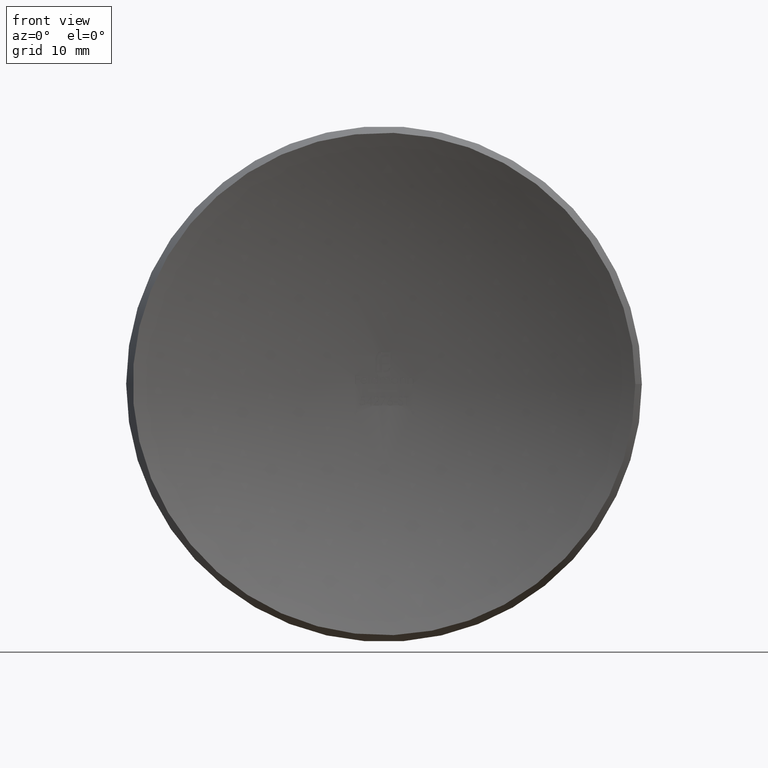
[diagram: clean part render]
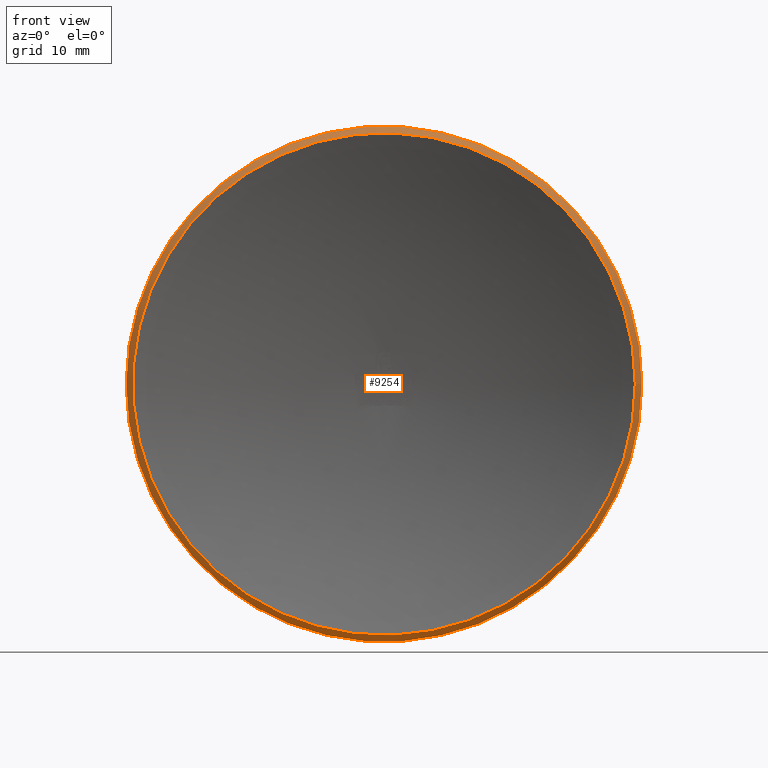
[diagram: same view with one face highlighted and labeled with its STEP entity id]
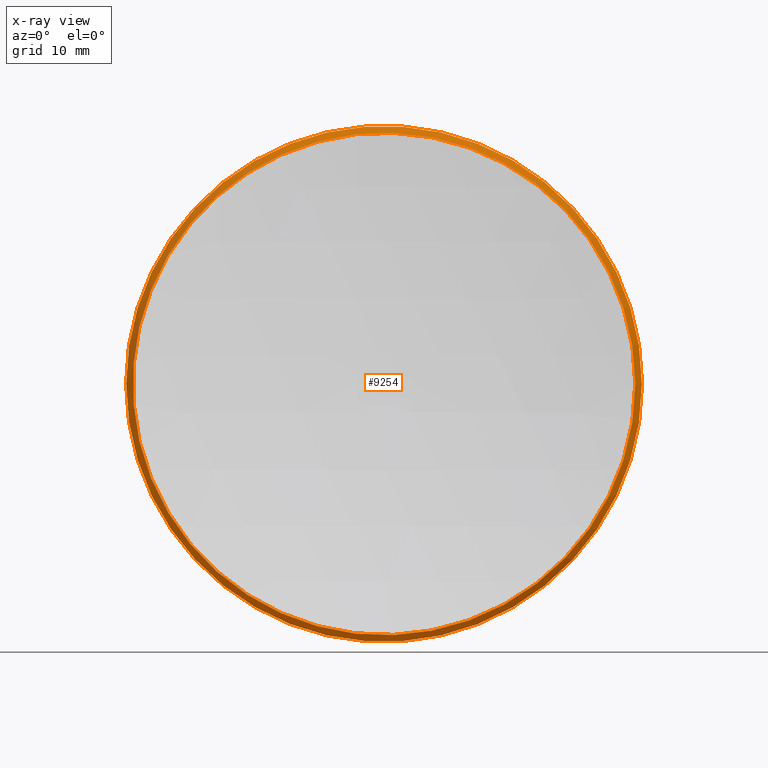
[diagram: x-ray of the same camera — body ghosted, the highlighted face saturated]
A machine part, front view. The second image highlights one B-rep face of the part: STEP entity #9254.
The next image is the same camera in x-ray: the body ghosted, the highlighted face saturated — about 0% of this face is hidden behind the body in this view.
In plain terms, the highlighted conical surface has half-angle 22.87 deg.
Its self-contained STEP definition (entity closure, byte-faithful):
#235 = EDGE_LOOP ( 'NONE', ( #8612 ) ) ;
#432 = CARTESIAN_POINT ( 'NONE',  ( 2.336718278531102960E-14, -5.898059818321144121E-14, 0.000000000000000000 ) ) ;
#921 = CIRCLE ( 'NONE', #9112, 38.04999999999998295 ) ;
#1476 = AXIS2_PLACEMENT_3D ( 'NONE', #432, #10582, #5888 ) ;
#1540 = CARTESIAN_POINT ( 'NONE',  ( 2.336718278531102960E-14, -5.898059818321144121E-14, 0.000000000000000000 ) ) ;
#2340 = CARTESIAN_POINT ( 'NONE',  ( 38.04999999999999716, 2.303466873221362565, 0.000000000000000000 ) ) ;
#2916 = VERTEX_POINT ( 'NONE', #2340 ) ;
#3492 = DIRECTION ( 'NONE',  ( 1.000000000000000000, 2.336519793529866184E-15, 0.000000000000000000 ) ) ;
#4052 = CONICAL_SURFACE ( 'NONE', #5252, 37.07838260412267317, 0.3991626531439501635 ) ;
#4214 = EDGE_LOOP ( 'NONE', ( #8139 ) ) ;
#4902 = EDGE_CURVE ( 'NONE', #8574, #8574, #5340, .T. ) ;
#5252 = AXIS2_PLACEMENT_3D ( 'NONE', #1540, #11664, #8027 ) ;
#5340 = CIRCLE ( 'NONE', #1476, 37.07838260412266607 ) ;
#5888 = DIRECTION ( 'NONE',  ( 1.000000000000000000, 2.336718278530774715E-15, 0.000000000000000000 ) ) ;
#6813 = FACE_OUTER_BOUND ( 'NONE', #4214, .T. ) ;
#8027 = DIRECTION ( 'NONE',  ( -1.000000000000000000, -2.336718278530775109E-15, 0.000000000000000000 ) ) ;
#8139 = ORIENTED_EDGE ( 'NONE', *, *, #9703, .T. ) ;
#8574 = VERTEX_POINT ( 'NONE', #10703 ) ;
#8612 = ORIENTED_EDGE ( 'NONE', *, *, #4902, .F. ) ;
#8937 = FACE_BOUND ( 'NONE', #235, .T. ) ;
#9112 = AXIS2_PLACEMENT_3D ( 'NONE', #10688, #10820, #3492 ) ;
#9254 = ADVANCED_FACE ( 'NONE', ( #6813, #8937 ), #4052, .T. ) ;
#9703 = EDGE_CURVE ( 'NONE', #2916, #2916, #921, .T. ) ;
#10582 = DIRECTION ( 'NONE',  ( 2.336718278530774715E-15, -1.000000000000000000, -0.000000000000000000 ) ) ;
#10688 = CARTESIAN_POINT ( 'NONE',  ( 1.798462963866461211E-14, 2.303466873221273747, 0.000000000000000000 ) ) ;
#10703 = CARTESIAN_POINT ( 'NONE',  ( 37.07838260412268738, 2.766113618619949964E-14, 0.000000000000000000 ) ) ;
#10820 = DIRECTION ( 'NONE',  ( 2.336718278530774715E-15, -1.000000000000000000, -0.000000000000000000 ) ) ;
#11664 = DIRECTION ( 'NONE',  ( -2.336718278530774715E-15, 1.000000000000000000, 0.000000000000000000 ) ) ;